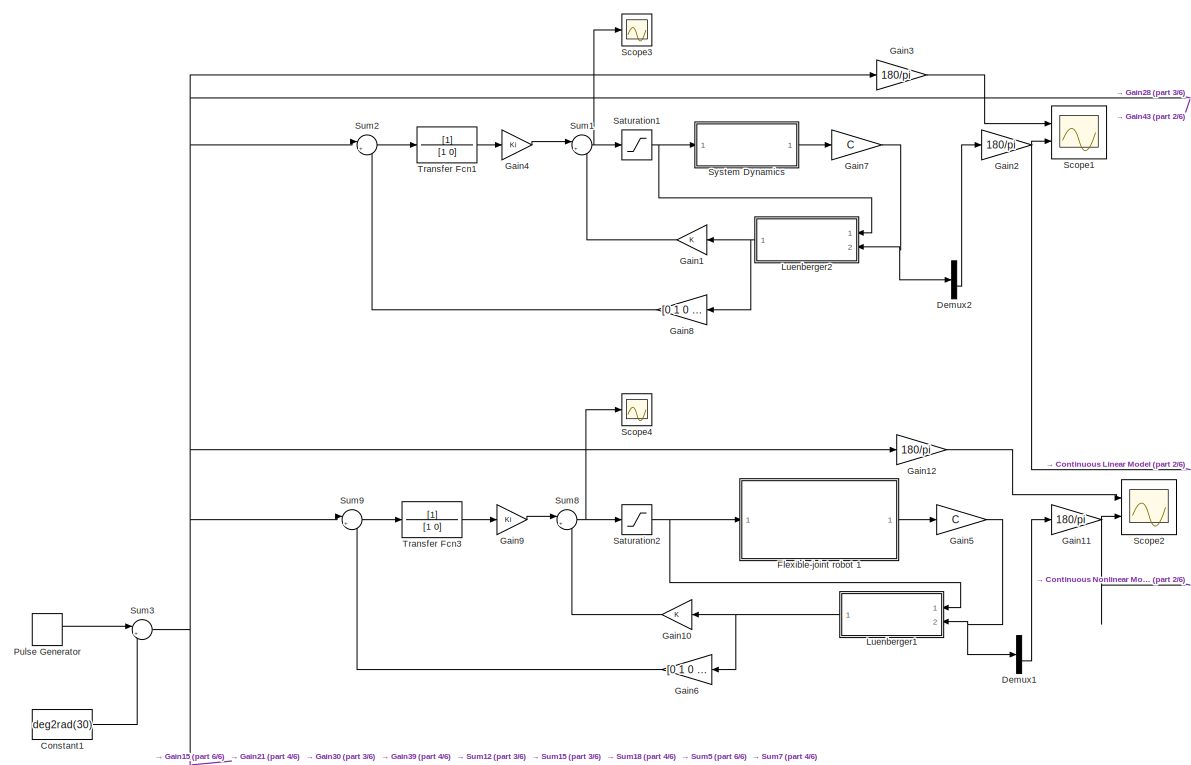
[diagram: root canvas - part 1/6, top left region]
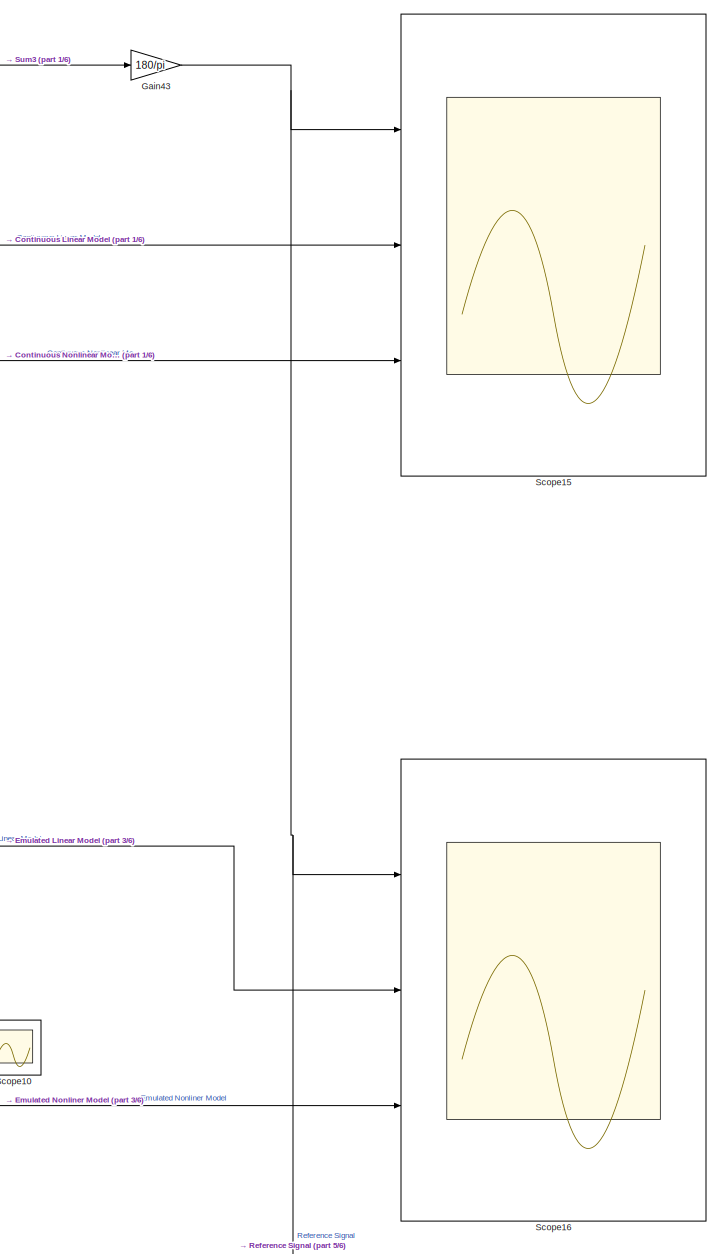
[diagram: root canvas - part 2/6, top right region]
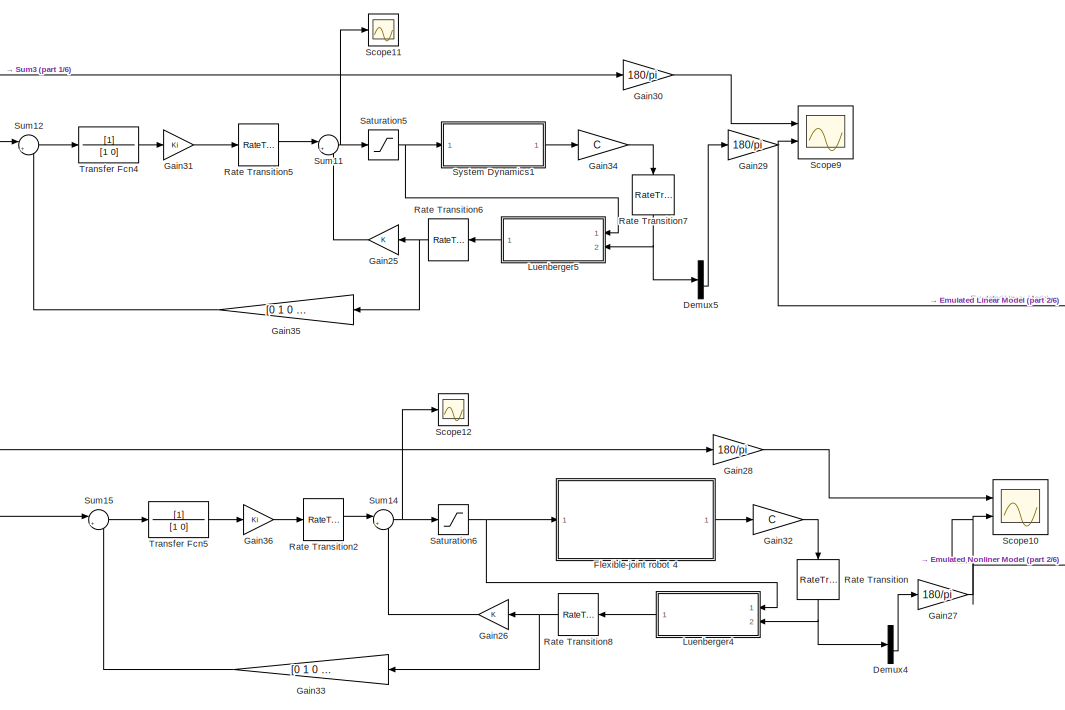
[diagram: root canvas - part 3/6, central region]
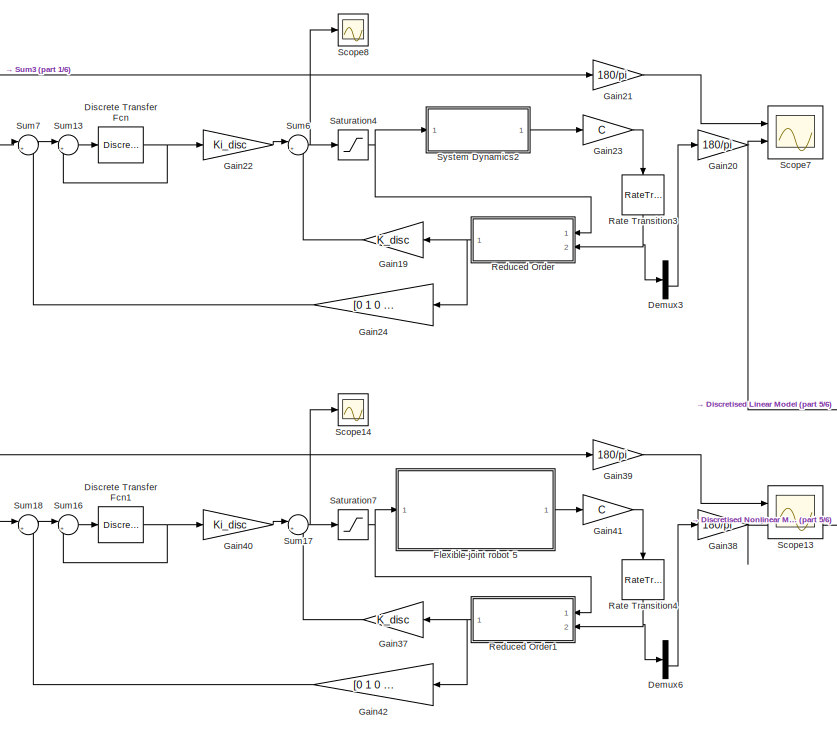
[diagram: root canvas - part 4/6, bottom center region]
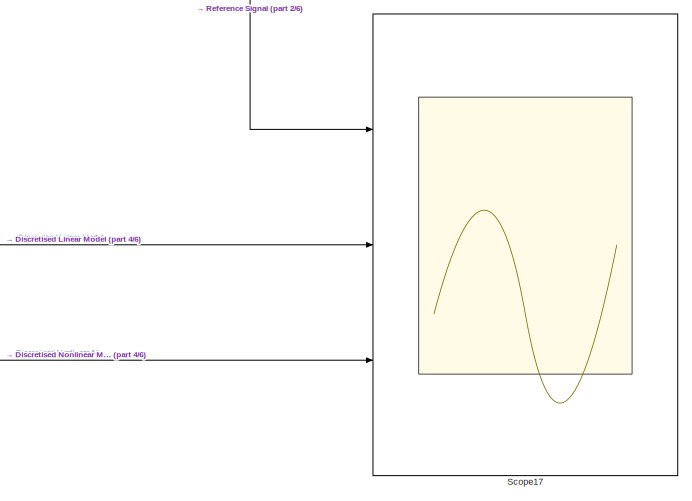
[diagram: root canvas - part 5/6, bottom right region]
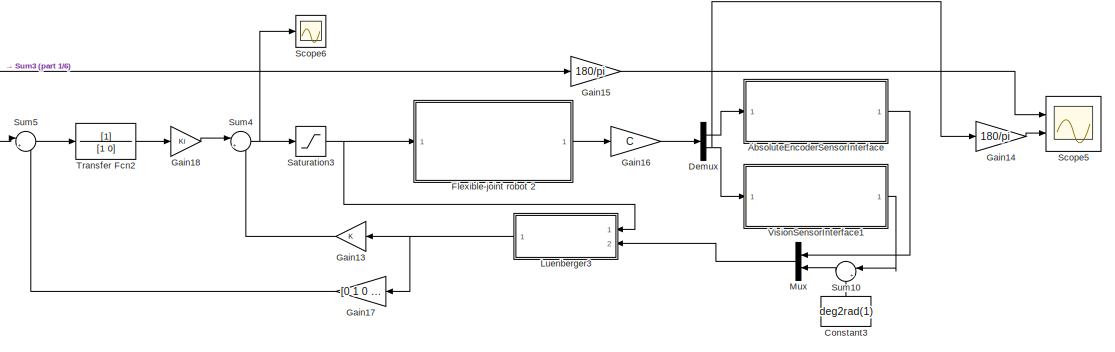
[diagram: root canvas - part 6/6, bottom center region]
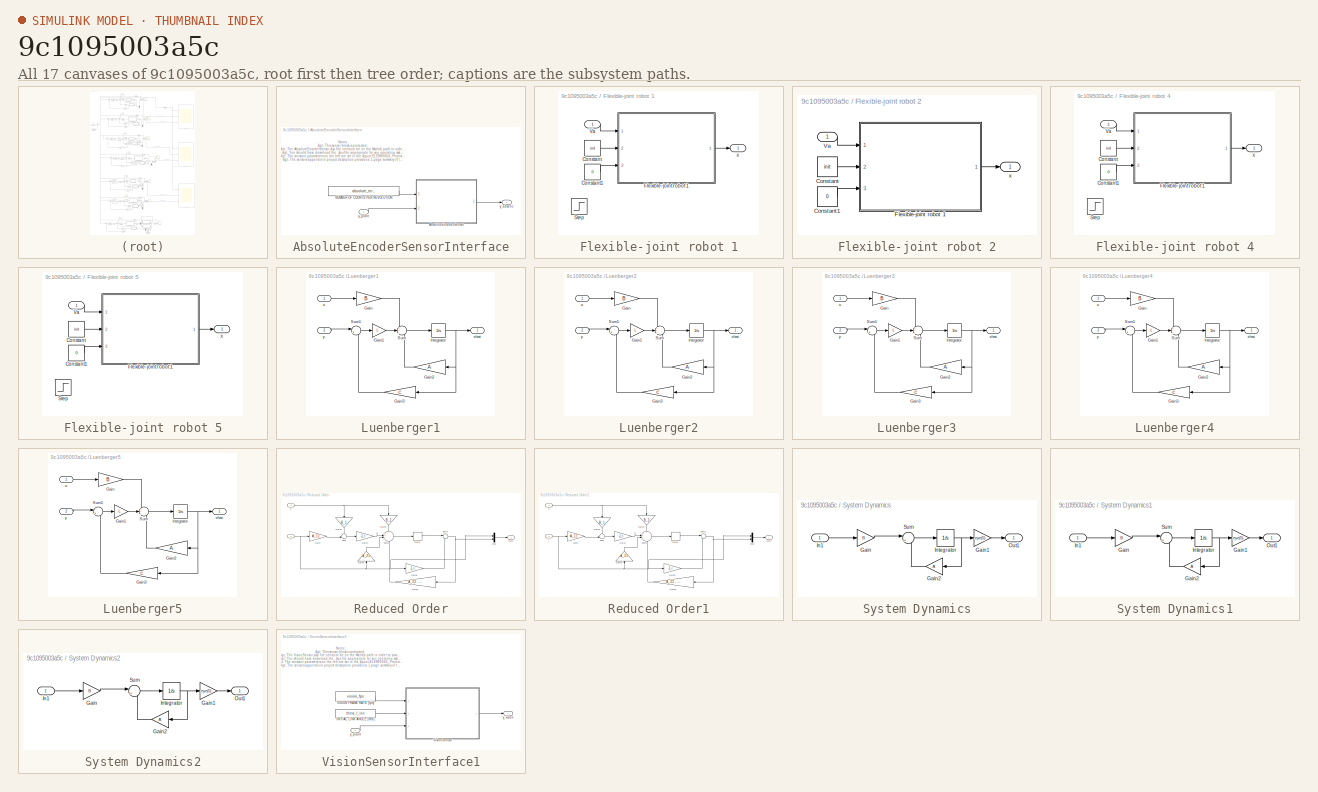
[diagram: thumbnail index - all 17 canvases of the model, root first then tree order]
MODEL slx_9c1095003a5c
KIND model
CONFIG AbsTol = auto
CONFIG EnableMultiTasking = off
CONFIG FixedStep = auto
CONFIG MaxStep = auto
CONFIG MinStep = auto
CONFIG RelTol = 1e-3
CONFIG SampleTimeConstraint = Unconstrained
CONFIG SolverName = ode45
CONFIG StartTime = 0.0
CONFIG StopTime = 20
BLOCK [SubSystem] AbsoluteEncoderSensorInterface
  Ports = [1, 1]
  RequestExecContextInheritance = off
  TreatAsAtomicUnit = on
BLOCK [ModelReference] AbsoluteEncoderSensorInterface/AbsoluteEncoderSensor
  CopyOfModelProtected = on
  ModelNameDialog = AbsoluteEncoderSensor.slxp
  ModelReferenceVersion = 1.16
  Ports = [2, 1]
BLOCK [Constant] AbsoluteEncoderSensorInterface/NUMBER OF COUNTS PER REVOLUTION
  Value = absolute_encoder_counts_per_revolution
BLOCK [Outport] AbsoluteEncoderSensorInterface/y_absenc
BLOCK [Inport] AbsoluteEncoderSensorInterface/y_plant
BLOCK [Constant] Constant1
  Value = deg2rad(30)
BLOCK [Constant] Constant3
  NameLocation = right
  Value = deg2rad(1)
BLOCK [Demux] Demux
  Outputs = 2
  Ports = [1, 2]
BLOCK [Demux] Demux1
  Outputs = 2
  Ports = [1, 2]
BLOCK [Demux] Demux2
  Outputs = 2
  Ports = [1, 2]
BLOCK [Demux] Demux3
  Outputs = 2
  Ports = [1, 2]
BLOCK [Demux] Demux4
  Outputs = 2
  Ports = [1, 2]
BLOCK [Demux] Demux5
  Outputs = 2
  Ports = [1, 2]
BLOCK [Demux] Demux6
  Outputs = 2
  Ports = [1, 2]
BLOCK [DiscreteTransferFcn] Discrete Transfer Fcn
  Denominator = [1 0]
  InputPortMap = u0
  Ports = [1, 1]
BLOCK [DiscreteTransferFcn] Discrete Transfer Fcn1
  Denominator = [1 0]
  InputPortMap = u0
  Ports = [1, 1]
BLOCK [SubSystem] Flexible-joint robot 1
  Ports = [1, 1]
  RequestExecContextInheritance = off
BLOCK [Constant] Flexible-joint robot 1/Constant
  Value = init
BLOCK [Constant] Flexible-joint robot 1/Constant1
  Value = 0
BLOCK [ModelReference] Flexible-joint robot 1/Flexible-joint robot 1
  CopyOfModelProtected = on
  ModelNameDialog = Flexible_joint_robot_1
  ModelReferenceVersion = 1.65
  Ports = [3, 1]
BLOCK [Step] Flexible-joint robot 1/Step
  After = 0.05
  SampleTime = 0
BLOCK [Inport] Flexible-joint robot 1/Va
BLOCK [Outport] Flexible-joint robot 1/x
BLOCK [SubSystem] Flexible-joint robot 2
  Ports = [1, 1]
  RequestExecContextInheritance = off
BLOCK [Constant] Flexible-joint robot 2/Constant
  Value = init
BLOCK [Constant] Flexible-joint robot 2/Constant1
  Value = 0
BLOCK [ModelReference] Flexible-joint robot 2/Flexible-joint robot 1
  CopyOfModelProtected = on
  ModelNameDialog = Flexible_joint_robot_1
  ModelReferenceVersion = 1.65
  Ports = [3, 1]
BLOCK [Inport] Flexible-joint robot 2/Va
BLOCK [Outport] Flexible-joint robot 2/x
BLOCK [SubSystem] Flexible-joint robot 4
  Ports = [1, 1]
  RequestExecContextInheritance = off
BLOCK [Constant] Flexible-joint robot 4/Constant
  Value = init
BLOCK [Constant] Flexible-joint robot 4/Constant1
  Value = 0
BLOCK [ModelReference] Flexible-joint robot 4/Flexible-joint robot 1
  CopyOfModelProtected = on
  ModelNameDialog = Flexible_joint_robot_1
  ModelReferenceVersion = 1.65
  Ports = [3, 1]
BLOCK [Step] Flexible-joint robot 4/Step
  After = 0.05
  SampleTime = 0
BLOCK [Inport] Flexible-joint robot 4/Va
BLOCK [Outport] Flexible-joint robot 4/x
BLOCK [SubSystem] Flexible-joint robot 5
  Ports = [1, 1]
  RequestExecContextInheritance = off
BLOCK [Constant] Flexible-joint robot 5/Constant
  Value = init
BLOCK [Constant] Flexible-joint robot 5/Constant1
  Value = 0
BLOCK [ModelReference] Flexible-joint robot 5/Flexible-joint robot 1
  CopyOfModelProtected = on
  ModelNameDialog = Flexible_joint_robot_1
  ModelReferenceVersion = 1.65
  Ports = [3, 1]
BLOCK [Step] Flexible-joint robot 5/Step
  After = 0.05
  SampleTime = 0
BLOCK [Inport] Flexible-joint robot 5/Va
BLOCK [Outport] Flexible-joint robot 5/x
BLOCK [Gain] Gain1
  Gain = K
  Multiplication = Matrix(K*u)
  NameLocation = top
BLOCK [Gain] Gain10
  Gain = K
  Multiplication = Matrix(K*u)
  NameLocation = top
BLOCK [Gain] Gain11
  Gain = 180/pi
BLOCK [Gain] Gain12
  Gain = 180/pi
BLOCK [Gain] Gain13
  Gain = K
  Multiplication = Matrix(K*u)
  NameLocation = top
BLOCK [Gain] Gain14
  Gain = 180/pi
BLOCK [Gain] Gain15
  Gain = 180/pi
BLOCK [Gain] Gain16
  Gain = C
  Multiplication = Matrix(K*u)
BLOCK [Gain] Gain17
  Gain = [0 1 0 0 0]
  Multiplication = Matrix(K*u)
  NameLocation = top
BLOCK [Gain] Gain18
  Gain = Ki
  Multiplication = Matrix(K*u)
BLOCK [Gain] Gain19
  Gain = K_disc
  Multiplication = Matrix(K*u)
  NameLocation = top
BLOCK [Gain] Gain2
  Gain = 180/pi
BLOCK [Gain] Gain20
  Gain = 180/pi
BLOCK [Gain] Gain21
  Gain = 180/pi
BLOCK [Gain] Gain22
  Gain = Ki_disc
  Multiplication = Matrix(K*u)
BLOCK [Gain] Gain23
  Gain = C
  Multiplication = Matrix(K*u)
BLOCK [Gain] Gain24
  Gain = [0 1 0 0 0]
  Multiplication = Matrix(K*u)
  NameLocation = top
BLOCK [Gain] Gain25
  Gain = K
  Multiplication = Matrix(K*u)
  NameLocation = top
BLOCK [Gain] Gain26
  Gain = K
  Multiplication = Matrix(K*u)
  NameLocation = top
BLOCK [Gain] Gain27
  Gain = 180/pi
BLOCK [Gain] Gain28
  Gain = 180/pi
BLOCK [Gain] Gain29
  Gain = 180/pi
BLOCK [Gain] Gain3
  Gain = 180/pi
BLOCK [Gain] Gain30
  Gain = 180/pi
BLOCK [Gain] Gain31
  Gain = Ki
  Multiplication = Matrix(K*u)
BLOCK [Gain] Gain32
  Gain = C
  Multiplication = Matrix(K*u)
BLOCK [Gain] Gain33
  Gain = [0 1 0 0 0]
  Multiplication = Matrix(K*u)
  NameLocation = top
BLOCK [Gain] Gain34
  Gain = C
  Multiplication = Matrix(K*u)
BLOCK [Gain] Gain35
  Gain = [0 1 0 0 0]
  Multiplication = Matrix(K*u)
  NameLocation = top
BLOCK [Gain] Gain36
  Gain = Ki
  Multiplication = Matrix(K*u)
BLOCK [Gain] Gain37
  Gain = K_disc
  Multiplication = Matrix(K*u)
  NameLocation = top
BLOCK [Gain] Gain38
  Gain = 180/pi
BLOCK [Gain] Gain39
  Gain = 180/pi
BLOCK [Gain] Gain4
  Gain = Ki
  Multiplication = Matrix(K*u)
BLOCK [Gain] Gain40
  Gain = Ki_disc
  Multiplication = Matrix(K*u)
BLOCK [Gain] Gain41
  Gain = C
  Multiplication = Matrix(K*u)
BLOCK [Gain] Gain42
  Gain = [0 1 0 0 0]
  Multiplication = Matrix(K*u)
  NameLocation = top
BLOCK [Gain] Gain43
  Gain = 180/pi
BLOCK [Gain] Gain5
  Gain = C
  Multiplication = Matrix(K*u)
BLOCK [Gain] Gain6
  Gain = [0 1 0 0 0]
  Multiplication = Matrix(K*u)
  NameLocation = top
BLOCK [Gain] Gain7
  Gain = C
  Multiplication = Matrix(K*u)
BLOCK [Gain] Gain8
  Gain = [0 1 0 0 0]
  Multiplication = Matrix(K*u)
  NameLocation = top
BLOCK [Gain] Gain9
  Gain = Ki
  Multiplication = Matrix(K*u)
BLOCK [SubSystem] Luenberger1
  Ports = [2, 1]
  RequestExecContextInheritance = off
  TreatAsAtomicUnit = on
BLOCK [Gain] Luenberger1/Gain
  Gain = B
  Multiplication = Matrix(K*u) (u vector)
BLOCK [Gain] Luenberger1/Gain1
  Gain = L
  Multiplication = Matrix(K*u) (u vector)
BLOCK [Gain] Luenberger1/Gain2
  Gain = A
  Multiplication = Matrix(K*u) (u vector)
  NameLocation = top
BLOCK [Gain] Luenberger1/Gain3
  Gain = C
  Multiplication = Matrix(K*u) (u vector)
  NameLocation = top
BLOCK [Integrator] Luenberger1/Integrator
  Ports = [1, 1]
BLOCK [Sum] Luenberger1/Sum
  Inputs = +++
  Ports = [3, 1]
BLOCK [Sum] Luenberger1/Sum1
  Inputs = |+-
  Ports = [2, 1]
BLOCK [Inport] Luenberger1/u
BLOCK [Outport] Luenberger1/xhat
BLOCK [Inport] Luenberger1/y
  Port = 2
BLOCK [SubSystem] Luenberger2
  Ports = [2, 1]
  RequestExecContextInheritance = off
  TreatAsAtomicUnit = on
BLOCK [Gain] Luenberger2/Gain
  Gain = B
  Multiplication = Matrix(K*u) (u vector)
BLOCK [Gain] Luenberger2/Gain1
  Gain = L
  Multiplication = Matrix(K*u) (u vector)
BLOCK [Gain] Luenberger2/Gain2
  Gain = A
  Multiplication = Matrix(K*u) (u vector)
  NameLocation = top
BLOCK [Gain] Luenberger2/Gain3
  Gain = C
  Multiplication = Matrix(K*u) (u vector)
  NameLocation = top
BLOCK [Integrator] Luenberger2/Integrator
  Ports = [1, 1]
BLOCK [Sum] Luenberger2/Sum
  Inputs = +++
  Ports = [3, 1]
BLOCK [Sum] Luenberger2/Sum1
  Inputs = |+-
  Ports = [2, 1]
BLOCK [Inport] Luenberger2/u
BLOCK [Outport] Luenberger2/xhat
BLOCK [Inport] Luenberger2/y
  Port = 2
BLOCK [SubSystem] Luenberger3
  Ports = [2, 1]
  RequestExecContextInheritance = off
  TreatAsAtomicUnit = on
BLOCK [Gain] Luenberger3/Gain
  Gain = B
  Multiplication = Matrix(K*u) (u vector)
BLOCK [Gain] Luenberger3/Gain1
  Gain = L
  Multiplication = Matrix(K*u) (u vector)
BLOCK [Gain] Luenberger3/Gain2
  Gain = A
  Multiplication = Matrix(K*u) (u vector)
  NameLocation = top
BLOCK [Gain] Luenberger3/Gain3
  Gain = C
  Multiplication = Matrix(K*u) (u vector)
  NameLocation = top
BLOCK [Integrator] Luenberger3/Integrator
  Ports = [1, 1]
BLOCK [Sum] Luenberger3/Sum
  Inputs = +++
  Ports = [3, 1]
BLOCK [Sum] Luenberger3/Sum1
  Inputs = |+-
  Ports = [2, 1]
BLOCK [Inport] Luenberger3/u
BLOCK [Outport] Luenberger3/xhat
BLOCK [Inport] Luenberger3/y
  Port = 2
BLOCK [SubSystem] Luenberger4
  Ports = [2, 1]
  RequestExecContextInheritance = off
  TreatAsAtomicUnit = on
BLOCK [Gain] Luenberger4/Gain
  Gain = B
  Multiplication = Matrix(K*u) (u vector)
BLOCK [Gain] Luenberger4/Gain1
  Gain = L
  Multiplication = Matrix(K*u) (u vector)
BLOCK [Gain] Luenberger4/Gain2
  Gain = A
  Multiplication = Matrix(K*u) (u vector)
  NameLocation = top
BLOCK [Gain] Luenberger4/Gain3
  Gain = C
  Multiplication = Matrix(K*u) (u vector)
  NameLocation = top
BLOCK [Integrator] Luenberger4/Integrator
  Ports = [1, 1]
BLOCK [Sum] Luenberger4/Sum
  Inputs = +++
  Ports = [3, 1]
BLOCK [Sum] Luenberger4/Sum1
  Inputs = |+-
  Ports = [2, 1]
BLOCK [Inport] Luenberger4/u
BLOCK [Outport] Luenberger4/xhat
BLOCK [Inport] Luenberger4/y
  Port = 2
BLOCK [SubSystem] Luenberger5
  Ports = [2, 1]
  RequestExecContextInheritance = off
  TreatAsAtomicUnit = on
BLOCK [Gain] Luenberger5/Gain
  Gain = B
  Multiplication = Matrix(K*u) (u vector)
BLOCK [Gain] Luenberger5/Gain1
  Gain = L
  Multiplication = Matrix(K*u) (u vector)
BLOCK [Gain] Luenberger5/Gain2
  Gain = A
  Multiplication = Matrix(K*u) (u vector)
  NameLocation = top
BLOCK [Gain] Luenberger5/Gain3
  Gain = C
  Multiplication = Matrix(K*u) (u vector)
  NameLocation = top
BLOCK [Integrator] Luenberger5/Integrator
  Ports = [1, 1]
BLOCK [Sum] Luenberger5/Sum
  Inputs = +++
  Ports = [3, 1]
BLOCK [Sum] Luenberger5/Sum1
  Inputs = |+-
  Ports = [2, 1]
BLOCK [Inport] Luenberger5/u
BLOCK [Outport] Luenberger5/xhat
BLOCK [Inport] Luenberger5/y
  Port = 2
BLOCK [Mux] Mux
  DisplayOption = bar
  Inputs = 2
  NameLocation = top
  Ports = [2, 1]
BLOCK [DiscretePulseGenerator] Pulse Generator
  Amplitude = deg2rad(30)
  Period = 5
  Ports = [0, 1]
  PulseType = Time based
  PulseWidth = 50
BLOCK [RateTransition] Rate Transition
  NameLocation = left
  OutPortSampleTime = T
BLOCK [RateTransition] Rate Transition2
  OutPortSampleTime = T
BLOCK [RateTransition] Rate Transition3
  NameLocation = left
  OutPortSampleTime = T
BLOCK [RateTransition] Rate Transition4
  NameLocation = left
  OutPortSampleTime = T
BLOCK [RateTransition] Rate Transition5
  OutPortSampleTime = T
BLOCK [RateTransition] Rate Transition6
  NameLocation = top
  OutPortSampleTime = T
BLOCK [RateTransition] Rate Transition7
  NameLocation = left
  OutPortSampleTime = T
BLOCK [RateTransition] Rate Transition8
  NameLocation = top
  OutPortSampleTime = T
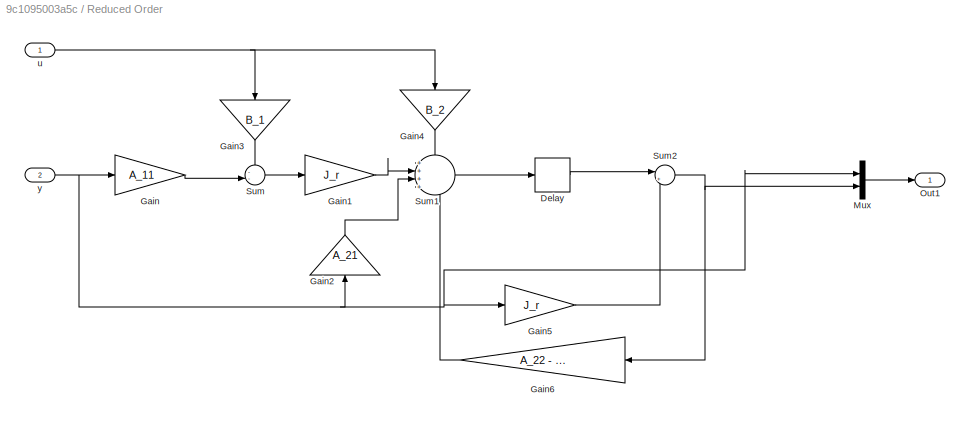
BLOCK [SubSystem] Reduced Order
  Ports = [2, 1]
  RequestExecContextInheritance = off
  TreatAsAtomicUnit = on
BLOCK [Delay] Reduced Order/Delay
  InputPortMap = u0
  Ports = [1, 1]
BLOCK [Gain] Reduced Order/Gain
  Gain = A_11
  Multiplication = Matrix(K*u) (u vector)
BLOCK [Gain] Reduced Order/Gain1
  Gain = J_r
  Multiplication = Matrix(K*u) (u vector)
BLOCK [Gain] Reduced Order/Gain2
  Gain = A_21
  Multiplication = Matrix(K*u) (u vector)
  NameLocation = right
BLOCK [Gain] Reduced Order/Gain3
  Gain = B_1
  Multiplication = Matrix(K*u) (u vector)
  NameLocation = left
BLOCK [Gain] Reduced Order/Gain4
  Gain = B_2
  Multiplication = Matrix(K*u) (u vector)
  NameLocation = left
BLOCK [Gain] Reduced Order/Gain5
  Gain = J_r
  Multiplication = Matrix(K*u) (u vector)
BLOCK [Gain] Reduced Order/Gain6
  Gain = A_22 - J_r*A_12
  Multiplication = Matrix(K*u) (u vector)
  NameLocation = top
BLOCK [Mux] Reduced Order/Mux
  DisplayOption = bar
  Inputs = 2
  Ports = [2, 1]
BLOCK [Outport] Reduced Order/Out1
BLOCK [Sum] Reduced Order/Sum
  Inputs = --|
  Ports = [2, 1]
BLOCK [Sum] Reduced Order/Sum1
  Inputs = ++++
  Ports = [4, 1]
BLOCK [Sum] Reduced Order/Sum2
  Inputs = |++
  Ports = [2, 1]
BLOCK [Inport] Reduced Order/u
BLOCK [Inport] Reduced Order/y
  Port = 2
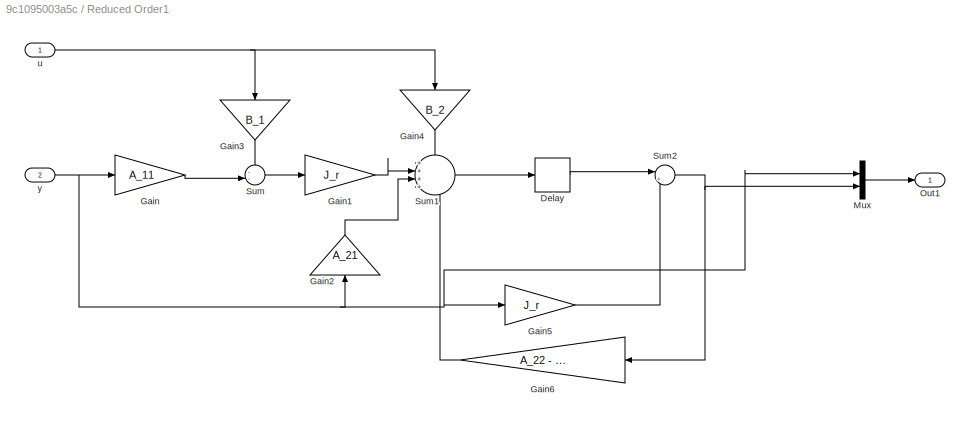
BLOCK [SubSystem] Reduced Order1
  Ports = [2, 1]
  RequestExecContextInheritance = off
  TreatAsAtomicUnit = on
BLOCK [Delay] Reduced Order1/Delay
  InputPortMap = u0
  Ports = [1, 1]
BLOCK [Gain] Reduced Order1/Gain
  Gain = A_11
  Multiplication = Matrix(K*u) (u vector)
BLOCK [Gain] Reduced Order1/Gain1
  Gain = J_r
  Multiplication = Matrix(K*u) (u vector)
BLOCK [Gain] Reduced Order1/Gain2
  Gain = A_21
  Multiplication = Matrix(K*u) (u vector)
  NameLocation = right
BLOCK [Gain] Reduced Order1/Gain3
  Gain = B_1
  Multiplication = Matrix(K*u) (u vector)
  NameLocation = left
BLOCK [Gain] Reduced Order1/Gain4
  Gain = B_2
  Multiplication = Matrix(K*u) (u vector)
  NameLocation = left
BLOCK [Gain] Reduced Order1/Gain5
  Gain = J_r
  Multiplication = Matrix(K*u) (u vector)
BLOCK [Gain] Reduced Order1/Gain6
  Gain = A_22 - J_r*A_12
  Multiplication = Matrix(K*u) (u vector)
  NameLocation = top
BLOCK [Mux] Reduced Order1/Mux
  DisplayOption = bar
  Inputs = 2
  Ports = [2, 1]
BLOCK [Outport] Reduced Order1/Out1
BLOCK [Sum] Reduced Order1/Sum
  Inputs = --|
  Ports = [2, 1]
BLOCK [Sum] Reduced Order1/Sum1
  Inputs = ++++
  Ports = [4, 1]
BLOCK [Sum] Reduced Order1/Sum2
  Inputs = |++
  Ports = [2, 1]
BLOCK [Inport] Reduced Order1/u
BLOCK [Inport] Reduced Order1/y
  Port = 2
BLOCK [Saturate] Saturation1
  LowerLimit = -6
  UpperLimit = 6
BLOCK [Saturate] Saturation2
  LowerLimit = -6
  UpperLimit = 6
BLOCK [Saturate] Saturation3
  LowerLimit = -6
  UpperLimit = 6
BLOCK [Saturate] Saturation4
  LowerLimit = -6
  UpperLimit = 6
BLOCK [Saturate] Saturation5
  LowerLimit = -6
  UpperLimit = 6
BLOCK [Saturate] Saturation6
  LowerLimit = -6
  UpperLimit = 6
BLOCK [Saturate] Saturation7
  LowerLimit = -6
  UpperLimit = 6
BLOCK [Scope] Scope1
  Floating = off
  NumInputPorts = 2
  Ports = [2]
  ScopeSpecificationString = Simulink.scopes.TimeScopeBlockCfg('CurrentConfiguration', extmgr.ConfigurationSet(extmgr.Configuration('Core','General UI',true),extmgr.Configuration('Core','Source UI',true),extmgr.Configuration('Sources','WiredSimulink',true),extmgr.Configuration('Visuals','Time Domain',true,'SerializedDisplays',{struct('MinYLimReal','-7.50002','MaxYLimReal','67.50022','YLabelReal','','MinYLimMag','0.00000','Max...<+1427ch>
BLOCK [Scope] Scope10
  Floating = off
  NumInputPorts = 2
  Ports = [2]
  ScopeSpecificationString = Simulink.scopes.TimeScopeBlockCfg('CurrentConfiguration', extmgr.ConfigurationSet(extmgr.Configuration('Core','General UI',true),extmgr.Configuration('Core','Source UI',true),extmgr.Configuration('Sources','WiredSimulink',true,'DataLoggingVariableName','ScopeData1'),extmgr.Configuration('Visuals','Time Domain',true,'SerializedDisplays',{struct('MinYLimReal','-184.24675','MaxYLimReal','255.92302','...<+1477ch>
BLOCK [Scope] Scope11
  Floating = off
  NumInputPorts = 1
  Ports = [1]
  ScopeSpecificationString = Simulink.scopes.TimeScopeBlockCfg('CurrentConfiguration', extmgr.ConfigurationSet(extmgr.Configuration('Core','General UI',true),extmgr.Configuration('Core','Source UI',true),extmgr.Configuration('Sources','WiredSimulink',true,'DataLoggingVariableName','ScopeData2'),extmgr.Configuration('Visuals','Time Domain',true,'SerializedDisplays',{struct('MinYLimReal','-0.41777','MaxYLimReal','1.36119','YLab...<+1382ch>
BLOCK [Scope] Scope12
  Floating = off
  NumInputPorts = 1
  Ports = [1]
  ScopeSpecificationString = Simulink.scopes.TimeScopeBlockCfg('CurrentConfiguration', extmgr.ConfigurationSet(extmgr.Configuration('Core','General UI',true),extmgr.Configuration('Core','Source UI',true),extmgr.Configuration('Sources','WiredSimulink',true,'DataLoggingVariableName','ScopeData3'),extmgr.Configuration('Visuals','Time Domain',true,'SerializedDisplays',{struct('MinYLimReal','-1.40209','MaxYLimReal','3.94809','YLab...<+1412ch>
BLOCK [Scope] Scope13
  Floating = off
  NumInputPorts = 2
  Ports = [2]
  ScopeSpecificationString = Simulink.scopes.TimeScopeBlockCfg('CurrentConfiguration', extmgr.ConfigurationSet(extmgr.Configuration('Core','General UI',true),extmgr.Configuration('Core','Source UI',true),extmgr.Configuration('Sources','WiredSimulink',true,'DataLoggingVariableName','ScopeData5'),extmgr.Configuration('Visuals','Time Domain',true,'SerializedDisplays',{struct('MinYLimReal','-7.5','MaxYLimReal','67.5','YLabelReal'...<+1447ch>
BLOCK [Scope] Scope14
  Floating = off
  NumInputPorts = 1
  Ports = [1]
  ScopeSpecificationString = Simulink.scopes.TimeScopeBlockCfg('CurrentConfiguration', extmgr.ConfigurationSet(extmgr.Configuration('Core','General UI',true),extmgr.Configuration('Core','Source UI',true),extmgr.Configuration('Sources','WiredSimulink',true,'DataLoggingVariableName','ScopeData6'),extmgr.Configuration('Visuals','Time Domain',true,'SerializedDisplays',{struct('MinYLimReal','-1.74538','MaxYLimReal','15.70839','YLa...<+1386ch>
BLOCK [Scope] Scope15
  Floating = off
  NumInputPorts = 3
  Ports = [3]
  ScopeSpecificationString = Simulink.scopes.TimeScopeBlockCfg('CurrentConfiguration', extmgr.ConfigurationSet(extmgr.Configuration('Core','General UI',true,'FigureColor',[1 1 1]),extmgr.Configuration('Core','Source UI',true),extmgr.Configuration('Sources','WiredSimulink',true,'DataLoggingVariableName','ScopeData7'),extmgr.Configuration('Visuals','Time Domain',true,'SerializedDisplays',{struct('MinYLimReal','-7.59746','MaxYLi...<+2525ch>
BLOCK [Scope] Scope16
  Floating = off
  NumInputPorts = 3
  Ports = [3]
  ScopeSpecificationString = Simulink.scopes.TimeScopeBlockCfg('CurrentConfiguration', extmgr.ConfigurationSet(extmgr.Configuration('Core','General UI',true,'FigureColor',[1 1 1]),extmgr.Configuration('Core','Source UI',true),extmgr.Configuration('Sources','WiredSimulink',true,'DataLoggingVariableName','ScopeData8'),extmgr.Configuration('Visuals','Time Domain',true,'SerializedDisplays',{struct('MinYLimReal','-233.57442','MaxY...<+2436ch>
BLOCK [Scope] Scope17
  Floating = off
  NumInputPorts = 3
  Ports = [3]
  ScopeSpecificationString = Simulink.scopes.TimeScopeBlockCfg('CurrentConfiguration', extmgr.ConfigurationSet(extmgr.Configuration('Core','General UI',true,'FigureColor',[1 1 1]),extmgr.Configuration('Core','Source UI',true),extmgr.Configuration('Sources','WiredSimulink',true,'DataLoggingVariableName','ScopeData9'),extmgr.Configuration('Visuals','Time Domain',true,'SerializedDisplays',{struct('MinYLimReal','-10.23706','MaxYL...<+2501ch>
BLOCK [Scope] Scope2
  Floating = off
  NumInputPorts = 2
  Ports = [2]
  ScopeSpecificationString = Simulink.scopes.TimeScopeBlockCfg('CurrentConfiguration', extmgr.ConfigurationSet(extmgr.Configuration('Core','General UI',true),extmgr.Configuration('Core','Source UI',true),extmgr.Configuration('Sources','WiredSimulink',true,'DataLoggingVariableName','ScopeData2'),extmgr.Configuration('Visuals','Time Domain',true,'SerializedDisplays',{struct('MinYLimReal','-7.59672','MaxYLimReal','68.37045','YLa...<+1470ch>
BLOCK [Scope] Scope3
  Floating = off
  NumInputPorts = 1
  Ports = [1]
  ScopeSpecificationString = Simulink.scopes.TimeScopeBlockCfg('CurrentConfiguration', extmgr.ConfigurationSet(extmgr.Configuration('Core','General UI',true),extmgr.Configuration('Core','Source UI',true),extmgr.Configuration('Sources','WiredSimulink',true,'DataLoggingVariableName','ScopeData1'),extmgr.Configuration('Visuals','Time Domain',true,'SerializedDisplays',{struct('MinYLimReal','-0.41777','MaxYLimReal','1.36119','YLab...<+1382ch>
BLOCK [Scope] Scope4
  Floating = off
  NumInputPorts = 1
  Ports = [1]
  ScopeSpecificationString = Simulink.scopes.TimeScopeBlockCfg('CurrentConfiguration', extmgr.ConfigurationSet(extmgr.Configuration('Core','General UI',true),extmgr.Configuration('Core','Source UI',true),extmgr.Configuration('Sources','WiredSimulink',true,'DataLoggingVariableName','ScopeData3'),extmgr.Configuration('Visuals','Time Domain',true,'SerializedDisplays',{struct('MinYLimReal','-1.40209','MaxYLimReal','3.94809','YLab...<+1412ch>
BLOCK [Scope] Scope5
  Floating = off
  NumInputPorts = 2
  Ports = [2]
  ScopeSpecificationString = Simulink.scopes.TimeScopeBlockCfg('CurrentConfiguration', extmgr.ConfigurationSet(extmgr.Configuration('Core','General UI',true),extmgr.Configuration('Core','Source UI',true),extmgr.Configuration('Sources','WiredSimulink',true,'DataLoggingVariableName','ScopeData1'),extmgr.Configuration('Visuals','Time Domain',true,'SerializedDisplays',{struct('MinYLimReal','-8.11988','MaxYLimReal','73.07288','YLa...<+1452ch>
BLOCK [Scope] Scope6
  Floating = off
  NumInputPorts = 1
  Ports = [1]
  ScopeSpecificationString = Simulink.scopes.TimeScopeBlockCfg('CurrentConfiguration', extmgr.ConfigurationSet(extmgr.Configuration('Core','General UI',true),extmgr.Configuration('Core','Source UI',true),extmgr.Configuration('Sources','WiredSimulink',true,'DataLoggingVariableName','ScopeData2'),extmgr.Configuration('Visuals','Time Domain',true,'SerializedDisplays',{struct('MinYLimReal','-10.44748','MaxYLimReal','7.65446','YLa...<+1441ch>
BLOCK [Scope] Scope7
  Floating = off
  NumInputPorts = 2
  Ports = [2]
  ScopeSpecificationString = Simulink.scopes.TimeScopeBlockCfg('CurrentConfiguration', extmgr.ConfigurationSet(extmgr.Configuration('Core','General UI',true),extmgr.Configuration('Core','Source UI',true),extmgr.Configuration('Sources','WiredSimulink',true,'DataLoggingVariableName','ScopeData1'),extmgr.Configuration('Visuals','Time Domain',true,'SerializedDisplays',{struct('MinYLimReal','-9.92685','MaxYLimReal','89.34161','YLa...<+1468ch>
BLOCK [Scope] Scope8
  Floating = off
  NumInputPorts = 1
  Ports = [1]
  ScopeSpecificationString = Simulink.scopes.TimeScopeBlockCfg('CurrentConfiguration', extmgr.ConfigurationSet(extmgr.Configuration('Core','General UI',true),extmgr.Configuration('Core','Source UI',true),extmgr.Configuration('Sources','WiredSimulink',true,'DataLoggingVariableName','ScopeData2'),extmgr.Configuration('Visuals','Time Domain',true,'SerializedDisplays',{struct('MinYLimReal','-1.74538','MaxYLimReal','15.70839','YLa...<+1386ch>
BLOCK [Scope] Scope9
  Floating = off
  NumInputPorts = 2
  Ports = [2]
  ScopeSpecificationString = Simulink.scopes.TimeScopeBlockCfg('CurrentConfiguration', extmgr.ConfigurationSet(extmgr.Configuration('Core','General UI',true),extmgr.Configuration('Core','Source UI',true),extmgr.Configuration('Sources','WiredSimulink',true,'DataLoggingVariableName','ScopeData4'),extmgr.Configuration('Visuals','Time Domain',true,'SerializedDisplays',{struct('MinYLimReal','-7.50002','MaxYLimReal','67.50022','YLa...<+1448ch>
BLOCK [Sum] Sum1
  Inputs = |+-
  Ports = [2, 1]
BLOCK [Sum] Sum10
  Inputs = |+-
  NameLocation = top
  Ports = [2, 1]
BLOCK [Sum] Sum11
  Inputs = |+-
  Ports = [2, 1]
BLOCK [Sum] Sum12
  Inputs = |+-
  Ports = [2, 1]
BLOCK [Sum] Sum13
  Inputs = |++
  Ports = [2, 1]
BLOCK [Sum] Sum14
  Inputs = |+-
  Ports = [2, 1]
BLOCK [Sum] Sum15
  Inputs = |+-
  Ports = [2, 1]
BLOCK [Sum] Sum16
  Inputs = |++
  Ports = [2, 1]
BLOCK [Sum] Sum17
  Inputs = |+-
  Ports = [2, 1]
BLOCK [Sum] Sum18
  Inputs = |+-
  Ports = [2, 1]
BLOCK [Sum] Sum2
  Inputs = |+-
  Ports = [2, 1]
BLOCK [Sum] Sum3
  Inputs = |++
  Ports = [2, 1]
BLOCK [Sum] Sum4
  Inputs = |+-
  Ports = [2, 1]
BLOCK [Sum] Sum5
  Inputs = |+-
  Ports = [2, 1]
BLOCK [Sum] Sum6
  Inputs = |+-
  Ports = [2, 1]
BLOCK [Sum] Sum7
  Inputs = |+-
  Ports = [2, 1]
BLOCK [Sum] Sum8
  Inputs = |+-
  Ports = [2, 1]
BLOCK [Sum] Sum9
  Inputs = |+-
  Ports = [2, 1]
BLOCK [SubSystem] System Dynamics
  Ports = [1, 1]
  RequestExecContextInheritance = off
  TreatAsAtomicUnit = on
BLOCK [Gain] System Dynamics/Gain
  Gain = B
  Multiplication = Matrix(K*u)
BLOCK [Gain] System Dynamics/Gain1
  Gain = eye(5)
  Multiplication = Matrix(K*u)
BLOCK [Gain] System Dynamics/Gain2
  Gain = A
  Multiplication = Matrix(K*u)
  NameLocation = top
BLOCK [Inport] System Dynamics/In1
BLOCK [Integrator] System Dynamics/Integrator
  Ports = [1, 1]
BLOCK [Outport] System Dynamics/Out1
BLOCK [Sum] System Dynamics/Sum
  Inputs = |++
  Ports = [2, 1]
BLOCK [SubSystem] System Dynamics1
  Ports = [1, 1]
  RequestExecContextInheritance = off
  TreatAsAtomicUnit = on
BLOCK [Gain] System Dynamics1/Gain
  Gain = B
  Multiplication = Matrix(K*u)
BLOCK [Gain] System Dynamics1/Gain1
  Gain = eye(5)
  Multiplication = Matrix(K*u)
BLOCK [Gain] System Dynamics1/Gain2
  Gain = A
  Multiplication = Matrix(K*u)
  NameLocation = top
BLOCK [Inport] System Dynamics1/In1
BLOCK [Integrator] System Dynamics1/Integrator
  Ports = [1, 1]
BLOCK [Outport] System Dynamics1/Out1
BLOCK [Sum] System Dynamics1/Sum
  Inputs = |++
  Ports = [2, 1]
BLOCK [SubSystem] System Dynamics2
  Ports = [1, 1]
  RequestExecContextInheritance = off
  TreatAsAtomicUnit = on
BLOCK [Gain] System Dynamics2/Gain
  Gain = B
  Multiplication = Matrix(K*u)
BLOCK [Gain] System Dynamics2/Gain1
  Gain = eye(5)
  Multiplication = Matrix(K*u)
BLOCK [Gain] System Dynamics2/Gain2
  Gain = A
  Multiplication = Matrix(K*u)
  NameLocation = top
BLOCK [Inport] System Dynamics2/In1
BLOCK [Integrator] System Dynamics2/Integrator
  Ports = [1, 1]
BLOCK [Outport] System Dynamics2/Out1
BLOCK [Sum] System Dynamics2/Sum
  Inputs = |++
  Ports = [2, 1]
BLOCK [TransferFcn] Transfer Fcn1
  Denominator = [1 0]
BLOCK [TransferFcn] Transfer Fcn2
  Denominator = [1 0]
BLOCK [TransferFcn] Transfer Fcn3
  Denominator = [1 0]
BLOCK [TransferFcn] Transfer Fcn4
  Denominator = [1 0]
BLOCK [TransferFcn] Transfer Fcn5
  Denominator = [1 0]
BLOCK [SubSystem] VisionSensorInterface1
  Ports = [1, 1]
  RequestExecContextInheritance = off
  TreatAsAtomicUnit = on
BLOCK [Constant] VisionSensorInterface1/INITIAL LINK ANGLE [rad]
  Value = theta_l_init
BLOCK [Constant] VisionSensorInterface1/VISION FRAME RATE [fps]
  Value = vision_fps
BLOCK [ModelReference] VisionSensorInterface1/VisionSensor
  CopyOfModelProtected = on
  ModelNameDialog = VisionSensor.slxp
  ModelReferenceVersion = 1.19
  Ports = [3, 1]
BLOCK [Inport] VisionSensorInterface1/y_plant
BLOCK [Outport] VisionSensorInterface1/y_vision
ANNOTATION AbsoluteEncoderSensorInterface: Notes: > This sensor block is protected. > The AbsoluteEncoderSensor.slxp file needs to be on the Matlab path in order to simulate this sensor. > You should have download the .slpx file appropriate for you operating system {Windows, Mac, Linux}. > The constant parameters on the left are set in the " ELEN90064_Project_Parameters.m " script. > The sensors appendix in project description provides a 1...<+190ch>
ANNOTATION VisionSensorInterface1: Notes: > This sensor block is protected. > The VisionSensor.slxp file needs to be on the Matlab path in order to simulate this sensor. > You should have download the .slpx file appropriate for you operating system {Windows, Mac, Linux}. > The constant parameters on the left are set in the "ELEN90064_Project_Parameters.m" script. > The sensors appendix in project description provides a 1-page summa...<+179ch>
LINE AbsoluteEncoderSensorInterface/AbsoluteEncoderSensor:1 -> AbsoluteEncoderSensorInterface/y_absenc:1
LINE AbsoluteEncoderSensorInterface/NUMBER OF COUNTS PER REVOLUTION:1 -> AbsoluteEncoderSensorInterface/AbsoluteEncoderSensor:1
LINE AbsoluteEncoderSensorInterface/y_plant:1 -> AbsoluteEncoderSensorInterface/AbsoluteEncoderSensor:2
LINE AbsoluteEncoderSensorInterface:1 -> Mux:1
LINE Constant1:1 -> Sum3:2
LINE Constant3:1 -> Sum10:2
LINE Demux1:2 -> Gain11:1
LINE Demux2:2 -> Gain2:1
LINE Demux3:2 -> Gain20:1
LINE Demux4:2 -> Gain27:1
LINE Demux5:2 -> Gain29:1
LINE Demux6:2 -> Gain38:1
LINE Demux:1 -> AbsoluteEncoderSensorInterface:1
NET Demux:2 -> Gain14:1, VisionSensorInterface1:1
NET Discrete Transfer Fcn1:1 -> Gain40:1, Sum16:2
NET Discrete Transfer Fcn:1 -> Gain22:1, Sum13:2
LINE Flexible-joint robot 1/Constant1:1 -> Flexible-joint robot 1/Flexible-joint robot 1:3
LINE Flexible-joint robot 1/Constant:1 -> Flexible-joint robot 1/Flexible-joint robot 1:2
LINE Flexible-joint robot 1/Flexible-joint robot 1:1 -> Flexible-joint robot 1/x:1
LINE Flexible-joint robot 1/Va:1 -> Flexible-joint robot 1/Flexible-joint robot 1:1
LINE Flexible-joint robot 1:1 -> Gain5:1
LINE Flexible-joint robot 2/Constant1:1 -> Flexible-joint robot 2/Flexible-joint robot 1:3
LINE Flexible-joint robot 2/Constant:1 -> Flexible-joint robot 2/Flexible-joint robot 1:2
LINE Flexible-joint robot 2/Flexible-joint robot 1:1 -> Flexible-joint robot 2/x:1
LINE Flexible-joint robot 2/Va:1 -> Flexible-joint robot 2/Flexible-joint robot 1:1
LINE Flexible-joint robot 2:1 -> Gain16:1
LINE Flexible-joint robot 4/Constant1:1 -> Flexible-joint robot 4/Flexible-joint robot 1:3
LINE Flexible-joint robot 4/Constant:1 -> Flexible-joint robot 4/Flexible-joint robot 1:2
LINE Flexible-joint robot 4/Flexible-joint robot 1:1 -> Flexible-joint robot 4/x:1
LINE Flexible-joint robot 4/Va:1 -> Flexible-joint robot 4/Flexible-joint robot 1:1
LINE Flexible-joint robot 4:1 -> Gain32:1
LINE Flexible-joint robot 5/Constant1:1 -> Flexible-joint robot 5/Flexible-joint robot 1:3
LINE Flexible-joint robot 5/Constant:1 -> Flexible-joint robot 5/Flexible-joint robot 1:2
LINE Flexible-joint robot 5/Flexible-joint robot 1:1 -> Flexible-joint robot 5/x:1
LINE Flexible-joint robot 5/Va:1 -> Flexible-joint robot 5/Flexible-joint robot 1:1
LINE Flexible-joint robot 5:1 -> Gain41:1
LINE Gain10:1 -> Sum8:2
NET Gain11:1 -> Scope15:3, Scope2:2
LINE Gain12:1 -> Scope2:1
LINE Gain13:1 -> Sum4:2
LINE Gain14:1 -> Scope5:2
LINE Gain15:1 -> Scope5:1
LINE Gain16:1 -> Demux:1
LINE Gain17:1 -> Sum5:2
LINE Gain18:1 -> Sum4:1
LINE Gain19:1 -> Sum6:2
LINE Gain1:1 -> Sum1:2
NET Gain20:1 -> Scope17:2, Scope7:2
LINE Gain21:1 -> Scope7:1
LINE Gain22:1 -> Sum6:1
LINE Gain23:1 -> Rate Transition3:1
LINE Gain24:1 -> Sum7:2
LINE Gain25:1 -> Sum11:2
LINE Gain26:1 -> Sum14:2
NET Gain27:1 -> Scope10:2, Scope16:3
LINE Gain28:1 -> Scope10:1
NET Gain29:1 -> Scope16:2, Scope9:2
NET Gain2:1 -> Scope15:2, Scope1:2
LINE Gain30:1 -> Scope9:1
LINE Gain31:1 -> Rate Transition5:1
LINE Gain32:1 -> Rate Transition:1
LINE Gain33:1 -> Sum15:2
LINE Gain34:1 -> Rate Transition7:1
LINE Gain35:1 -> Sum12:2
LINE Gain36:1 -> Rate Transition2:1
LINE Gain37:1 -> Sum17:2
NET Gain38:1 -> Scope13:2, Scope17:3
LINE Gain39:1 -> Scope13:1
LINE Gain3:1 -> Scope1:1
LINE Gain40:1 -> Sum17:1
LINE Gain41:1 -> Rate Transition4:1
LINE Gain42:1 -> Sum18:2
NET Gain43:1 -> Scope15:1, Scope16:1, Scope17:1
LINE Gain4:1 -> Sum1:1
NET Gain5:1 -> Demux1:1, Luenberger1:2
LINE Gain6:1 -> Sum9:2
NET Gain7:1 -> Demux2:1, Luenberger2:2
LINE Gain8:1 -> Sum2:2
LINE Gain9:1 -> Sum8:1
LINE Luenberger1/Gain1:1 -> Luenberger1/Sum:2
LINE Luenberger1/Gain2:1 -> Luenberger1/Sum:3
LINE Luenberger1/Gain3:1 -> Luenberger1/Sum1:2
LINE Luenberger1/Gain:1 -> Luenberger1/Sum:1
NET Luenberger1/Integrator:1 -> Luenberger1/Gain2:1, Luenberger1/Gain3:1, Luenberger1/xhat:1
LINE Luenberger1/Sum1:1 -> Luenberger1/Gain1:1
LINE Luenberger1/Sum:1 -> Luenberger1/Integrator:1
LINE Luenberger1/u:1 -> Luenberger1/Gain:1
LINE Luenberger1/y:1 -> Luenberger1/Sum1:1
NET Luenberger1:1 -> Gain10:1, Gain6:1
LINE Luenberger2/Gain1:1 -> Luenberger2/Sum:2
LINE Luenberger2/Gain2:1 -> Luenberger2/Sum:3
LINE Luenberger2/Gain3:1 -> Luenberger2/Sum1:2
LINE Luenberger2/Gain:1 -> Luenberger2/Sum:1
NET Luenberger2/Integrator:1 -> Luenberger2/Gain2:1, Luenberger2/Gain3:1, Luenberger2/xhat:1
LINE Luenberger2/Sum1:1 -> Luenberger2/Gain1:1
LINE Luenberger2/Sum:1 -> Luenberger2/Integrator:1
LINE Luenberger2/u:1 -> Luenberger2/Gain:1
LINE Luenberger2/y:1 -> Luenberger2/Sum1:1
NET Luenberger2:1 -> Gain1:1, Gain8:1
LINE Luenberger3/Gain1:1 -> Luenberger3/Sum:2
LINE Luenberger3/Gain2:1 -> Luenberger3/Sum:3
LINE Luenberger3/Gain3:1 -> Luenberger3/Sum1:2
LINE Luenberger3/Gain:1 -> Luenberger3/Sum:1
NET Luenberger3/Integrator:1 -> Luenberger3/Gain2:1, Luenberger3/Gain3:1, Luenberger3/xhat:1
LINE Luenberger3/Sum1:1 -> Luenberger3/Gain1:1
LINE Luenberger3/Sum:1 -> Luenberger3/Integrator:1
LINE Luenberger3/u:1 -> Luenberger3/Gain:1
LINE Luenberger3/y:1 -> Luenberger3/Sum1:1
NET Luenberger3:1 -> Gain13:1, Gain17:1
LINE Luenberger4/Gain1:1 -> Luenberger4/Sum:2
LINE Luenberger4/Gain2:1 -> Luenberger4/Sum:3
LINE Luenberger4/Gain3:1 -> Luenberger4/Sum1:2
LINE Luenberger4/Gain:1 -> Luenberger4/Sum:1
NET Luenberger4/Integrator:1 -> Luenberger4/Gain2:1, Luenberger4/Gain3:1, Luenberger4/xhat:1
LINE Luenberger4/Sum1:1 -> Luenberger4/Gain1:1
LINE Luenberger4/Sum:1 -> Luenberger4/Integrator:1
LINE Luenberger4/u:1 -> Luenberger4/Gain:1
LINE Luenberger4/y:1 -> Luenberger4/Sum1:1
LINE Luenberger4:1 -> Rate Transition8:1
LINE Luenberger5/Gain1:1 -> Luenberger5/Sum:2
LINE Luenberger5/Gain2:1 -> Luenberger5/Sum:3
LINE Luenberger5/Gain3:1 -> Luenberger5/Sum1:2
LINE Luenberger5/Gain:1 -> Luenberger5/Sum:1
NET Luenberger5/Integrator:1 -> Luenberger5/Gain2:1, Luenberger5/Gain3:1, Luenberger5/xhat:1
LINE Luenberger5/Sum1:1 -> Luenberger5/Gain1:1
LINE Luenberger5/Sum:1 -> Luenberger5/Integrator:1
LINE Luenberger5/u:1 -> Luenberger5/Gain:1
LINE Luenberger5/y:1 -> Luenberger5/Sum1:1
LINE Luenberger5:1 -> Rate Transition6:1
LINE Mux:1 -> Luenberger3:2
LINE Pulse Generator:1 -> Sum3:1
LINE Rate Transition2:1 -> Sum14:1
NET Rate Transition3:1 -> Demux3:1, Reduced Order:2
NET Rate Transition4:1 -> Demux6:1, Reduced Order1:2
LINE Rate Transition5:1 -> Sum11:1
NET Rate Transition6:1 -> Gain25:1, Gain35:1
NET Rate Transition7:1 -> Demux5:1, Luenberger5:2
NET Rate Transition8:1 -> Gain26:1, Gain33:1
NET Rate Transition:1 -> Demux4:1, Luenberger4:2
LINE Reduced Order/Delay:1 -> Reduced Order/Sum2:1
LINE Reduced Order/Gain1:1 -> Reduced Order/Sum1:2
LINE Reduced Order/Gain2:1 -> Reduced Order/Sum1:3
LINE Reduced Order/Gain3:1 -> Reduced Order/Sum:1
LINE Reduced Order/Gain4:1 -> Reduced Order/Sum1:1
LINE Reduced Order/Gain5:1 -> Reduced Order/Sum2:2
LINE Reduced Order/Gain6:1 -> Reduced Order/Sum1:4
LINE Reduced Order/Gain:1 -> Reduced Order/Sum:2
LINE Reduced Order/Mux:1 -> Reduced Order/Out1:1
LINE Reduced Order/Sum1:1 -> Reduced Order/Delay:1
NET Reduced Order/Sum2:1 -> Reduced Order/Gain6:1, Reduced Order/Mux:2
LINE Reduced Order/Sum:1 -> Reduced Order/Gain1:1
NET Reduced Order/u:1 -> Reduced Order/Gain3:1, Reduced Order/Gain4:1
NET Reduced Order/y:1 -> Reduced Order/Gain2:1, Reduced Order/Gain5:1, Reduced Order/Gain:1, Reduced Order/Mux:1
LINE Reduced Order1/Delay:1 -> Reduced Order1/Sum2:1
LINE Reduced Order1/Gain1:1 -> Reduced Order1/Sum1:2
LINE Reduced Order1/Gain2:1 -> Reduced Order1/Sum1:3
LINE Reduced Order1/Gain3:1 -> Reduced Order1/Sum:1
LINE Reduced Order1/Gain4:1 -> Reduced Order1/Sum1:1
LINE Reduced Order1/Gain5:1 -> Reduced Order1/Sum2:2
LINE Reduced Order1/Gain6:1 -> Reduced Order1/Sum1:4
LINE Reduced Order1/Gain:1 -> Reduced Order1/Sum:2
LINE Reduced Order1/Mux:1 -> Reduced Order1/Out1:1
LINE Reduced Order1/Sum1:1 -> Reduced Order1/Delay:1
NET Reduced Order1/Sum2:1 -> Reduced Order1/Gain6:1, Reduced Order1/Mux:2
LINE Reduced Order1/Sum:1 -> Reduced Order1/Gain1:1
NET Reduced Order1/u:1 -> Reduced Order1/Gain3:1, Reduced Order1/Gain4:1
NET Reduced Order1/y:1 -> Reduced Order1/Gain2:1, Reduced Order1/Gain5:1, Reduced Order1/Gain:1, Reduced Order1/Mux:1
NET Reduced Order1:1 -> Gain37:1, Gain42:1
NET Reduced Order:1 -> Gain19:1, Gain24:1
NET Saturation1:1 -> Luenberger2:1, System Dynamics:1
NET Saturation2:1 -> Flexible-joint robot 1:1, Luenberger1:1
NET Saturation3:1 -> Flexible-joint robot 2:1, Luenberger3:1
NET Saturation4:1 -> Reduced Order:1, System Dynamics2:1
NET Saturation5:1 -> Luenberger5:1, System Dynamics1:1
NET Saturation6:1 -> Flexible-joint robot 4:1, Luenberger4:1
NET Saturation7:1 -> Flexible-joint robot 5:1, Reduced Order1:1
LINE Sum10:1 -> Mux:2
NET Sum11:1 -> Saturation5:1, Scope11:1
LINE Sum12:1 -> Transfer Fcn4:1
LINE Sum13:1 -> Discrete Transfer Fcn:1
NET Sum14:1 -> Saturation6:1, Scope12:1
LINE Sum15:1 -> Transfer Fcn5:1
LINE Sum16:1 -> Discrete Transfer Fcn1:1
NET Sum17:1 -> Saturation7:1, Scope14:1
LINE Sum18:1 -> Sum16:1
NET Sum1:1 -> Saturation1:1, Scope3:1
LINE Sum2:1 -> Transfer Fcn1:1
NET Sum3:1 -> Gain12:1, Gain15:1, Gain21:1, Gain28:1, Gain30:1, Gain39:1, Gain3:1, Gain43:1, Sum12:1, Sum15:1, Sum18:1, Sum2:1, Sum5:1, Sum7:1, Sum9:1
NET Sum4:1 -> Saturation3:1, Scope6:1
LINE Sum5:1 -> Transfer Fcn2:1
NET Sum6:1 -> Saturation4:1, Scope8:1
LINE Sum7:1 -> Sum13:1
NET Sum8:1 -> Saturation2:1, Scope4:1
LINE Sum9:1 -> Transfer Fcn3:1
LINE System Dynamics/Gain1:1 -> System Dynamics/Out1:1
LINE System Dynamics/Gain2:1 -> System Dynamics/Sum:2
LINE System Dynamics/Gain:1 -> System Dynamics/Sum:1
LINE System Dynamics/In1:1 -> System Dynamics/Gain:1
NET System Dynamics/Integrator:1 -> System Dynamics/Gain1:1, System Dynamics/Gain2:1
LINE System Dynamics/Sum:1 -> System Dynamics/Integrator:1
LINE System Dynamics1/Gain1:1 -> System Dynamics1/Out1:1
LINE System Dynamics1/Gain2:1 -> System Dynamics1/Sum:2
LINE System Dynamics1/Gain:1 -> System Dynamics1/Sum:1
LINE System Dynamics1/In1:1 -> System Dynamics1/Gain:1
NET System Dynamics1/Integrator:1 -> System Dynamics1/Gain1:1, System Dynamics1/Gain2:1
LINE System Dynamics1/Sum:1 -> System Dynamics1/Integrator:1
LINE System Dynamics1:1 -> Gain34:1
LINE System Dynamics2/Gain1:1 -> System Dynamics2/Out1:1
LINE System Dynamics2/Gain2:1 -> System Dynamics2/Sum:2
LINE System Dynamics2/Gain:1 -> System Dynamics2/Sum:1
LINE System Dynamics2/In1:1 -> System Dynamics2/Gain:1
NET System Dynamics2/Integrator:1 -> System Dynamics2/Gain1:1, System Dynamics2/Gain2:1
LINE System Dynamics2/Sum:1 -> System Dynamics2/Integrator:1
LINE System Dynamics2:1 -> Gain23:1
LINE System Dynamics:1 -> Gain7:1
LINE Transfer Fcn1:1 -> Gain4:1
LINE Transfer Fcn2:1 -> Gain18:1
LINE Transfer Fcn3:1 -> Gain9:1
LINE Transfer Fcn4:1 -> Gain31:1
LINE Transfer Fcn5:1 -> Gain36:1
LINE VisionSensorInterface1/INITIAL LINK ANGLE [rad]:1 -> VisionSensorInterface1/VisionSensor:2
LINE VisionSensorInterface1/VISION FRAME RATE [fps]:1 -> VisionSensorInterface1/VisionSensor:1
LINE VisionSensorInterface1/VisionSensor:1 -> VisionSensorInterface1/y_vision:1
LINE VisionSensorInterface1/y_plant:1 -> VisionSensorInterface1/VisionSensor:3
LINE VisionSensorInterface1:1 -> Sum10:1
note: NET lines group one-source signal fan-out (src -> all destinations, sorted); 1:1 wires keep LINE
